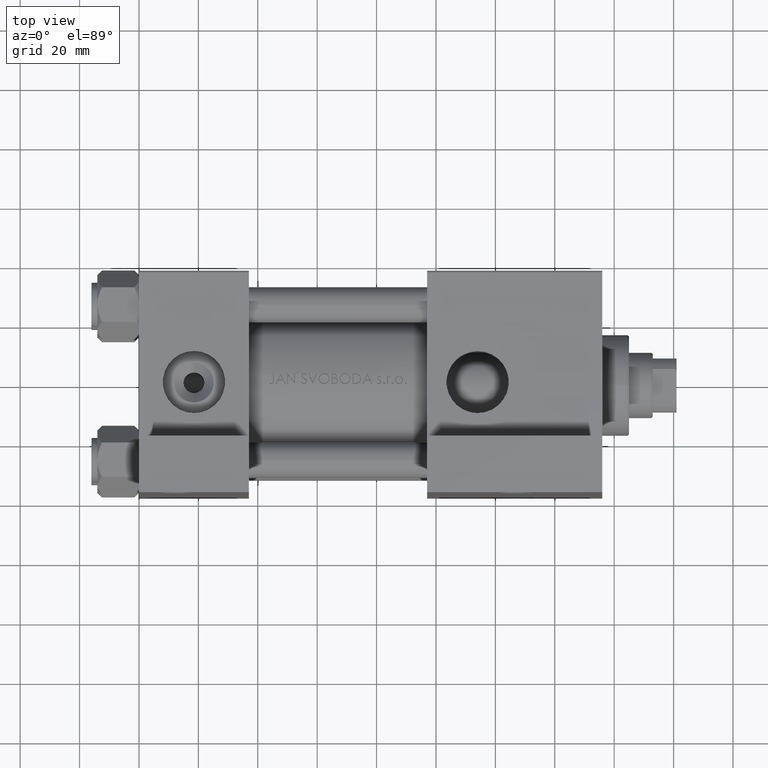
[diagram: clean part render]
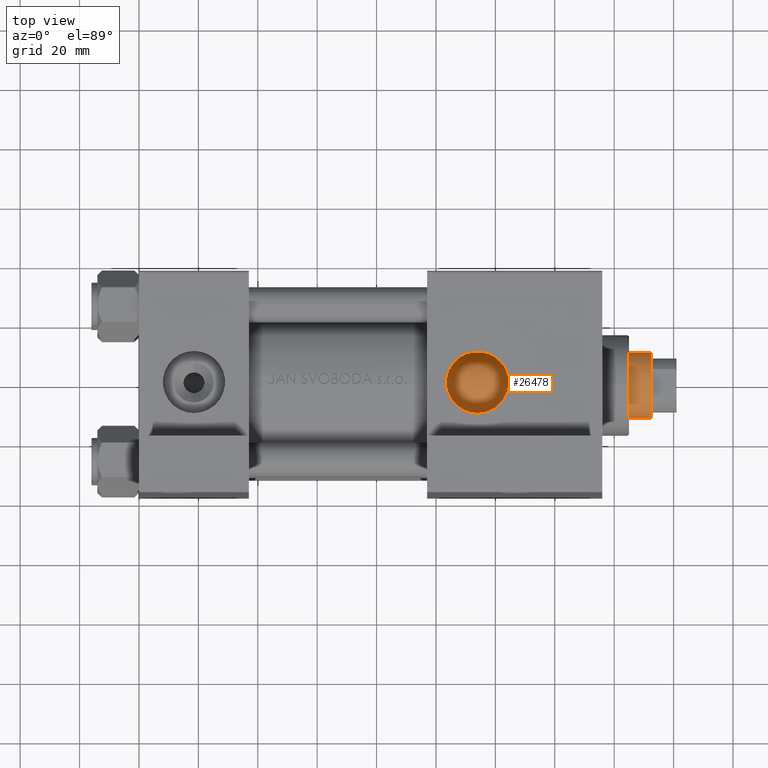
[diagram: same view with one face highlighted and labeled with its STEP entity id]
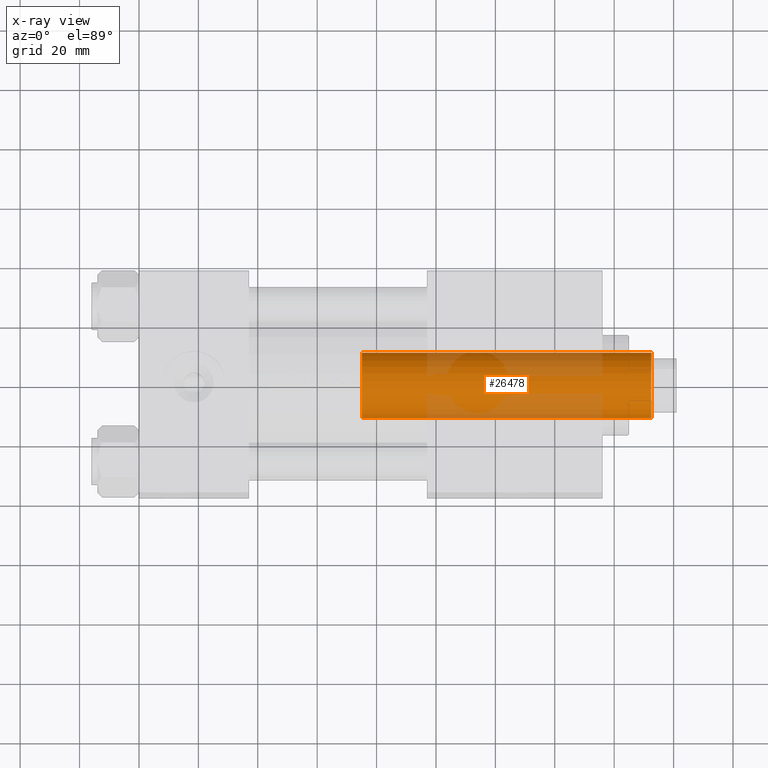
[diagram: x-ray of the same camera — body ghosted, the highlighted face saturated]
A machine part, top view. The second image highlights one B-rep face of the part: STEP entity #26478.
The next image is the same camera in x-ray: the body ghosted, the highlighted face saturated — about 34% of this face is hidden behind the body in this view.
In plain terms, the highlighted cylindrical surface (edge-blend (fillet) strip) has radius 11 mm, axis along (-1, 0, 0).
Its self-contained STEP definition (entity closure, byte-faithful):
#4281 = CIRCLE ( 'NONE', #35269, 11.00000000000000000 ) ;
#4557 = CARTESIAN_POINT ( 'NONE',  ( 11.00000000000000000, 1.347111479062088405E-15, 135.5000000000000000 ) ) ;
#5394 = AXIS2_PLACEMENT_3D ( 'NONE', #40231, #9312, #36729 ) ;
#5528 = DIRECTION ( 'NONE',  ( -1.000000000000000000, 0.000000000000000000, 0.000000000000000000 ) ) ;
#6267 = FACE_OUTER_BOUND ( 'NONE', #16836, .T. ) ;
#6675 = DIRECTION ( 'NONE',  ( -0.000000000000000000, -0.000000000000000000, -1.000000000000000000 ) ) ;
#9011 = ORIENTED_EDGE ( 'NONE', *, *, #21180, .T. ) ;
#9312 = DIRECTION ( 'NONE',  ( 0.000000000000000000, 0.000000000000000000, 1.000000000000000000 ) ) ;
#11030 = VECTOR ( 'NONE', #17904, 1000.000000000000000 ) ;
#13481 = CARTESIAN_POINT ( 'NONE',  ( 0.000000000000000000, 0.000000000000000000, 136.0000000000000000 ) ) ;
#14635 = EDGE_CURVE ( 'NONE', #21078, #23525, #45993, .T. ) ;
#15121 = ORIENTED_EDGE ( 'NONE', *, *, #44859, .T. ) ;
#16836 = EDGE_LOOP ( 'NONE', ( #18589, #15121, #9011, #33068 ) ) ;
#17718 = CYLINDRICAL_SURFACE ( 'NONE', #22323, 11.00000000000000000 ) ;
#17782 = VERTEX_POINT ( 'NONE', #46850 ) ;
#17904 = DIRECTION ( 'NONE',  ( -0.000000000000000000, -0.000000000000000000, -1.000000000000000000 ) ) ;
#18176 = DIRECTION ( 'NONE',  ( 1.000000000000000000, 0.000000000000000000, 0.000000000000000000 ) ) ;
#18589 = ORIENTED_EDGE ( 'NONE', *, *, #42382, .F. ) ;
#20039 = VERTEX_POINT ( 'NONE', #4557 ) ;
#21078 = VERTEX_POINT ( 'NONE', #43094 ) ;
#21180 = EDGE_CURVE ( 'NONE', #17782, #21078, #45065, .T. ) ;
#21877 = CARTESIAN_POINT ( 'NONE',  ( 11.00000000000000000, 1.347111479062088405E-15, 136.0000000000000000 ) ) ;
#22176 = CARTESIAN_POINT ( 'NONE',  ( 0.000000000000000000, 0.000000000000000000, 135.5000000000000000 ) ) ;
#22323 = AXIS2_PLACEMENT_3D ( 'NONE', #13481, #40411, #5528 ) ;
#23525 = VERTEX_POINT ( 'NONE', #31309 ) ;
#26478 = ADVANCED_FACE ( 'NONE', ( #6267 ), #17718, .T. ) ;
#31309 = CARTESIAN_POINT ( 'NONE',  ( 11.00000000000000000, 1.347111479062088405E-15, 38.00000000000000000 ) ) ;
#33068 = ORIENTED_EDGE ( 'NONE', *, *, #14635, .T. ) ;
#35269 = AXIS2_PLACEMENT_3D ( 'NONE', #22176, #44854, #18176 ) ;
#36729 = DIRECTION ( 'NONE',  ( 1.000000000000000000, 0.000000000000000000, 0.000000000000000000 ) ) ;
#37843 = CARTESIAN_POINT ( 'NONE',  ( -11.00000000000000000, 0.000000000000000000, 136.0000000000000000 ) ) ;
#40231 = CARTESIAN_POINT ( 'NONE',  ( 0.000000000000000000, 0.000000000000000000, 38.00000000000000000 ) ) ;
#40411 = DIRECTION ( 'NONE',  ( -0.000000000000000000, -0.000000000000000000, -1.000000000000000000 ) ) ;
#41306 = LINE ( 'NONE', #21877, #47214 ) ;
#42382 = EDGE_CURVE ( 'NONE', #20039, #23525, #41306, .T. ) ;
#43094 = CARTESIAN_POINT ( 'NONE',  ( -11.00000000000000000, 0.000000000000000000, 38.00000000000000000 ) ) ;
#44854 = DIRECTION ( 'NONE',  ( 0.000000000000000000, 0.000000000000000000, -1.000000000000000000 ) ) ;
#44859 = EDGE_CURVE ( 'NONE', #20039, #17782, #4281, .T. ) ;
#45065 = LINE ( 'NONE', #37843, #11030 ) ;
#45993 = CIRCLE ( 'NONE', #5394, 11.00000000000000000 ) ;
#46850 = CARTESIAN_POINT ( 'NONE',  ( -11.00000000000000000, 0.000000000000000000, 135.5000000000000000 ) ) ;
#47214 = VECTOR ( 'NONE', #6675, 1000.000000000000000 ) ;